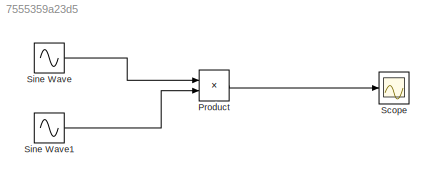
MODEL slx_7555359a23d5
KIND model
CONFIG AbsTol = auto
CONFIG EnableMultiTasking = off
CONFIG FixedStep = auto
CONFIG MaxStep = auto
CONFIG MinStep = auto
CONFIG RelTol = 1e-3
CONFIG SampleTimeConstraint = Unconstrained
CONFIG SolverName = VariableStepAuto
CONFIG StartTime = 0.0
CONFIG StopTime = 10.0
BLOCK [Product] Product
BLOCK [Scope] Scope
  Floating = off
  NumInputPorts = 1
  ScopeSpecificationString = Simulink.scopes.TimeScopeBlockCfg('CurrentConfiguration', extmgr.ConfigurationSet(extmgr.Configuration('Core','General UI',true),extmgr.Configuration('Core','Source UI',true),extmgr.Configuration('Sources','WiredSimulink',true),extmgr.Configuration('Visuals','Time Domain',true,'SerializedDisplays',{struct('MinYLimReal','-1.11834','MaxYLimReal','10.11858','YLabelReal','','MinYLimMag','0.00000','Max...<+1360ch>
BLOCK [Sin] Sine Wave
  Amplitude = 2
  Bias = 1
  Frequency = 2
  SampleTime = 0
BLOCK [Sin] Sine Wave1
  Amplitude = 2
  Bias = 1
  Frequency = 2
  SampleTime = 0
LINE Product:1 -> Scope:1
LINE Sine Wave1:1 -> Product:2
LINE Sine Wave:1 -> Product:1
